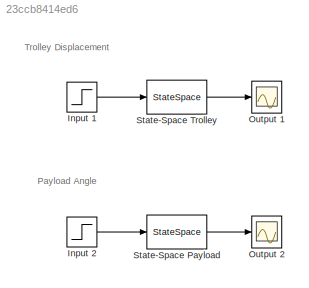
MODEL slx_23ccb8414ed6
KIND model
CONFIG AbsTol = auto
CONFIG EnableMultiTasking = off
CONFIG FixedStep = auto
CONFIG MaxStep = auto
CONFIG MinStep = auto
CONFIG RelTol = 1e-3
CONFIG SampleTimeConstraint = Unconstrained
CONFIG SolverName = VariableStepAuto
CONFIG StartTime = 0.0
CONFIG StopTime = 30
BLOCK [Step] Input 1
  SampleTime = 0
BLOCK [Step] Input 2
  SampleTime = 0
BLOCK [Scope] Output 1
  Floating = off
  NumInputPorts = 1
  ScopeSpecificationString = Simulink.scopes.TimeScopeBlockCfg('CurrentConfiguration', extmgr.ConfigurationSet(extmgr.Configuration('Core','General UI',true,'FigureColor',[0.831372549019608 0.815686274509804 0.784313725490196]),extmgr.Configuration('Core','Source UI',true),extmgr.Configuration('Sources','WiredSimulink',true),extmgr.Configuration('Visuals','Time Domain',true,'SerializedDisplays',{struct('MinYLimReal','-0.28632...<+1638ch>
BLOCK [Scope] Output 2
  Floating = off
  NumInputPorts = 1
  ScopeSpecificationString = Simulink.scopes.TimeScopeBlockCfg('CurrentConfiguration', extmgr.ConfigurationSet(extmgr.Configuration('Core','General UI',true,'FigureColor',[0.831372549019608 0.815686274509804 0.784313725490196]),extmgr.Configuration('Core','Source UI',true),extmgr.Configuration('Sources','WiredSimulink',true,'DataLoggingVariableName','ScopeData1'),extmgr.Configuration('Visuals','Time Domain',true,'SerializedDi...<+1675ch>
BLOCK [StateSpace] State-Space Payload
  A = [0 1 0 0; 0 0 1 0; 0 0 0 1; 0 -0.02893 -9.4176 -0.007373]
  B = [0;0;0;0.005385]
  C = [0 0 -1 0]
  D = 0
  InitialCondition = 0
BLOCK [StateSpace] State-Space Trolley
  A = [0 1 0 0; 0 0 1 0; 0 0 0 1; 0 -0.02893 -9.4176 -0.007373]
  B = [0;0;0;0.005385]
  C = [9.81 0 2.5 0]
  D = 0
  InitialCondition = 0
ANNOTATION (root): Payload Angle
ANNOTATION (root): Trolley Displacement
LINE Input 1:1 -> State-Space Trolley:1
LINE Input 2:1 -> State-Space Payload:1
LINE State-Space Payload:1 -> Output 2:1
LINE State-Space Trolley:1 -> Output 1:1
